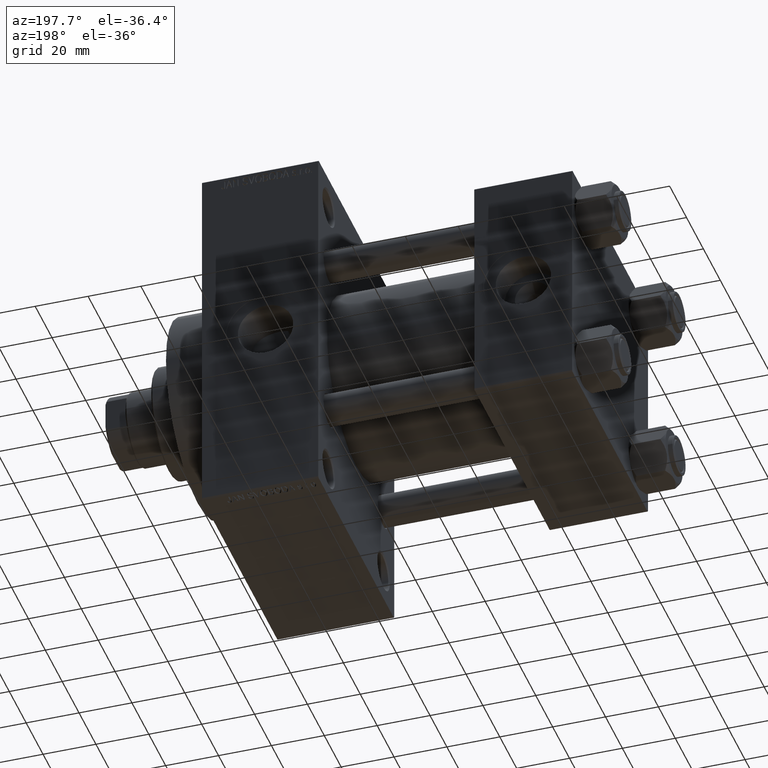
[diagram: clean part render]
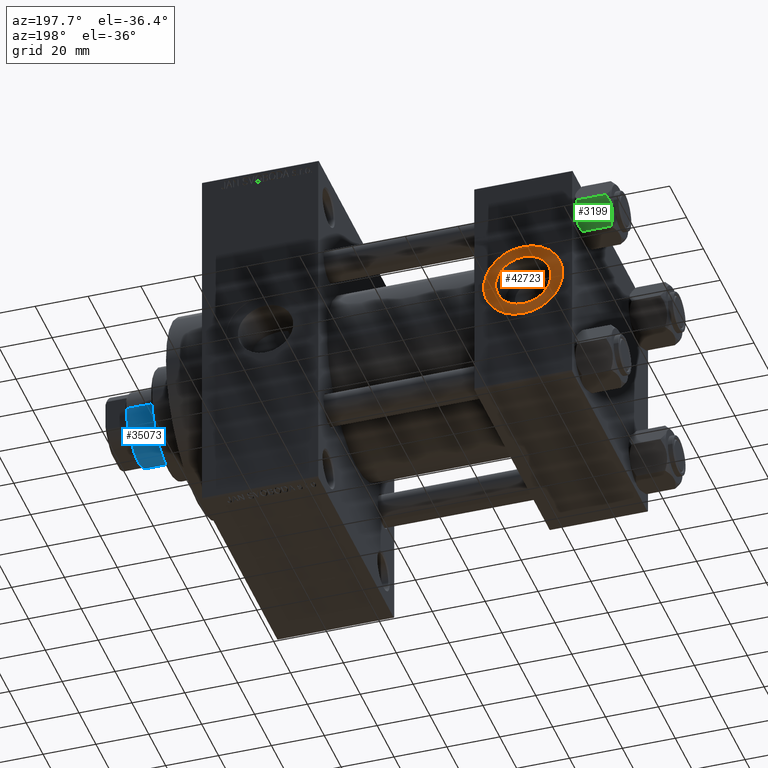
[diagram: same view with three faces highlighted in distinct colors, each labeled with its STEP entity id]
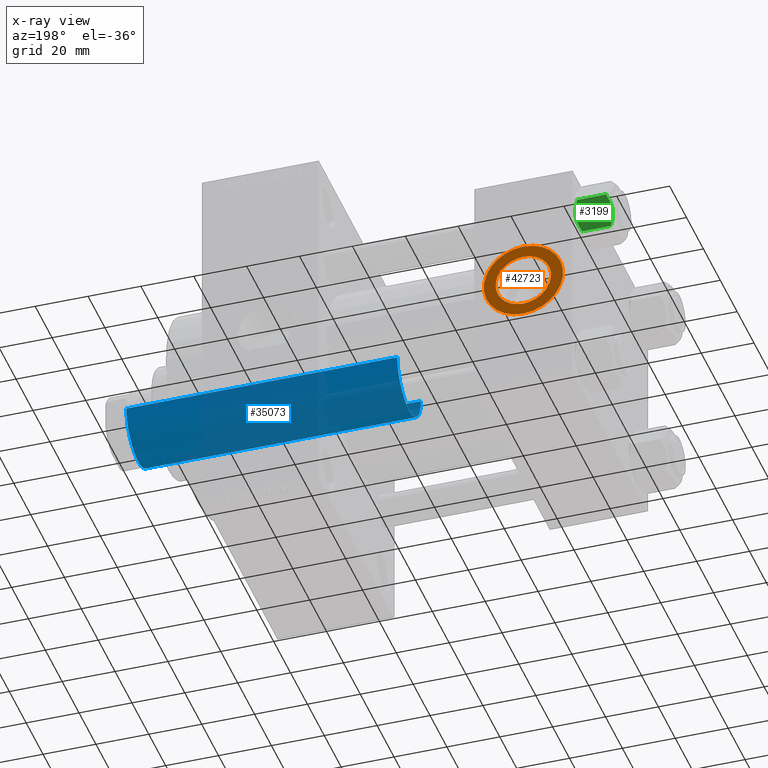
[diagram: x-ray of the same camera — body ghosted, the three highlighted faces saturated]
A machine part, auxiliary view with three faces highlighted in distinct colors.
The next image is the same camera in x-ray (body ghosted, the three faces saturated) — at least one of them is partly hidden behind the body in this view.
Their STEP definitions:

[orange] entity #42723 — the highlighted planar face has unit normal (0, 1, 0).
#172 = DIRECTION ( 'NONE',  ( 0.000000000000000000, -0.000000000000000000, 1.000000000000000000 ) ) ;
#447 = AXIS2_PLACEMENT_3D ( 'NONE', #34890, #2174, #45875 ) ;
#574 = ORIENTED_EDGE ( 'NONE', *, *, #23894, .T. ) ;
#1934 = CARTESIAN_POINT ( 'NONE',  ( 18.50000000000000000, 44.79999999999998295, 15.00000000000000178 ) ) ;
#2174 = DIRECTION ( 'NONE',  ( 0.000000000000000000, 1.000000000000000000, 0.000000000000000000 ) ) ;
#2668 = CARTESIAN_POINT ( 'NONE',  ( 18.50000000000000000, 44.79999999999998295, 0.000000000000000000 ) ) ;
#4369 = EDGE_LOOP ( 'NONE', ( #574, #45633 ) ) ;
#4431 = EDGE_LOOP ( 'NONE', ( #26385, #34835 ) ) ;
#5524 = DIRECTION ( 'NONE',  ( 0.000000000000000000, 0.000000000000000000, 1.000000000000000000 ) ) ;
#6740 = CIRCLE ( 'NONE', #33423, 10.48000000000000043 ) ;
#9186 = EDGE_CURVE ( 'NONE', #44433, #11266, #46582, .T. ) ;
#9995 = AXIS2_PLACEMENT_3D ( 'NONE', #2668, #27725, #34906 ) ;
#10227 = FACE_OUTER_BOUND ( 'NONE', #4369, .T. ) ;
#10907 = CARTESIAN_POINT ( 'NONE',  ( 18.50000000000000000, 44.79999999999998295, 0.000000000000000000 ) ) ;
#11266 = VERTEX_POINT ( 'NONE', #1934 ) ;
#14262 = DIRECTION ( 'NONE',  ( 0.000000000000000000, 1.000000000000000000, 0.000000000000000000 ) ) ;
#17383 = CARTESIAN_POINT ( 'NONE',  ( 18.50000000000000000, 44.79999999999998295, 10.48000000000000043 ) ) ;
#17840 = DIRECTION ( 'NONE',  ( 0.000000000000000000, 1.000000000000000000, 0.000000000000000000 ) ) ;
#18064 = FACE_BOUND ( 'NONE', #4431, .T. ) ;
#18076 = CARTESIAN_POINT ( 'NONE',  ( 18.50000000000000000, 44.79999999999998295, 0.000000000000000000 ) ) ;
#18243 = CARTESIAN_POINT ( 'NONE',  ( 18.50000000000000000, 44.79999999999998295, -10.48000000000000043 ) ) ;
#20580 = EDGE_CURVE ( 'NONE', #43862, #26554, #42278, .T. ) ;
#23132 = AXIS2_PLACEMENT_3D ( 'NONE', #10907, #14262, #172 ) ;
#23894 = EDGE_CURVE ( 'NONE', #11266, #44433, #27871, .T. ) ;
#26385 = ORIENTED_EDGE ( 'NONE', *, *, #26506, .F. ) ;
#26506 = EDGE_CURVE ( 'NONE', #26554, #43862, #6740, .T. ) ;
#26554 = VERTEX_POINT ( 'NONE', #17383 ) ;
#27725 = DIRECTION ( 'NONE',  ( 0.000000000000000000, 1.000000000000000000, 0.000000000000000000 ) ) ;
#27871 = CIRCLE ( 'NONE', #447, 15.00000000000000178 ) ;
#27950 = CARTESIAN_POINT ( 'NONE',  ( 18.50000000000000355, 44.79999999999998295, -15.00000000000000178 ) ) ;
#28125 = DIRECTION ( 'NONE',  ( 0.000000000000000000, 0.000000000000000000, 1.000000000000000000 ) ) ;
#30612 = CARTESIAN_POINT ( 'NONE',  ( 18.50000000000000000, 44.79999999999998295, 0.000000000000000000 ) ) ;
#32879 = PLANE ( 'NONE',  #23132 ) ;
#33423 = AXIS2_PLACEMENT_3D ( 'NONE', #18076, #17840, #28125 ) ;
#34835 = ORIENTED_EDGE ( 'NONE', *, *, #20580, .F. ) ;
#34890 = CARTESIAN_POINT ( 'NONE',  ( 18.50000000000000000, 44.79999999999998295, 0.000000000000000000 ) ) ;
#34906 = DIRECTION ( 'NONE',  ( 0.000000000000000000, 0.000000000000000000, 1.000000000000000000 ) ) ;
#38245 = DIRECTION ( 'NONE',  ( 0.000000000000000000, 1.000000000000000000, 0.000000000000000000 ) ) ;
#40721 = AXIS2_PLACEMENT_3D ( 'NONE', #30612, #38245, #5524 ) ;
#42278 = CIRCLE ( 'NONE', #40721, 10.48000000000000043 ) ;
#42723 = ADVANCED_FACE ( 'NONE', ( #18064, #10227 ), #32879, .T. ) ;
#43862 = VERTEX_POINT ( 'NONE', #18243 ) ;
#44433 = VERTEX_POINT ( 'NONE', #27950 ) ;
#45633 = ORIENTED_EDGE ( 'NONE', *, *, #9186, .T. ) ;
#45875 = DIRECTION ( 'NONE',  ( 0.000000000000000000, 0.000000000000000000, 1.000000000000000000 ) ) ;
#46582 = CIRCLE ( 'NONE', #9995, 15.00000000000000178 ) ;

[blue] entity #35073 — the highlighted cylindrical surface (partial cylindrical patch) has radius 14 mm, axis along (-1, 0, 0).
#2363 = EDGE_CURVE ( 'NONE', #28854, #4145, #46529, .T. ) ;
#3615 = DIRECTION ( 'NONE',  ( -0.000000000000000000, -0.000000000000000000, -1.000000000000000000 ) ) ;
#4082 = DIRECTION ( 'NONE',  ( -0.000000000000000000, -0.000000000000000000, -1.000000000000000000 ) ) ;
#4145 = VERTEX_POINT ( 'NONE', #24747 ) ;
#7141 = ORIENTED_EDGE ( 'NONE', *, *, #12049, .T. ) ;
#7550 = EDGE_LOOP ( 'NONE', ( #41310, #7141, #33747, #10991 ) ) ;
#7823 = CIRCLE ( 'NONE', #16220, 14.00000000000000178 ) ;
#9285 = AXIS2_PLACEMENT_3D ( 'NONE', #43486, #4082, #18640 ) ;
#9465 = VERTEX_POINT ( 'NONE', #31263 ) ;
#10991 = ORIENTED_EDGE ( 'NONE', *, *, #2363, .F. ) ;
#12049 = EDGE_CURVE ( 'NONE', #9465, #19801, #30113, .T. ) ;
#13316 = CARTESIAN_POINT ( 'NONE',  ( 0.000000000000000000, 0.000000000000000000, 39.00000000000000000 ) ) ;
#13530 = EDGE_CURVE ( 'NONE', #28854, #9465, #7823, .T. ) ;
#13810 = DIRECTION ( 'NONE',  ( -0.000000000000000000, -0.000000000000000000, -1.000000000000000000 ) ) ;
#15195 = VECTOR ( 'NONE', #13810, 1000.000000000000000 ) ;
#16220 = AXIS2_PLACEMENT_3D ( 'NONE', #24495, #24026, #38607 ) ;
#18640 = DIRECTION ( 'NONE',  ( -1.000000000000000000, 0.000000000000000000, 0.000000000000000000 ) ) ;
#19801 = VERTEX_POINT ( 'NONE', #30006 ) ;
#21492 = VECTOR ( 'NONE', #3615, 1000.000000000000000 ) ;
#21742 = CYLINDRICAL_SURFACE ( 'NONE', #9285, 14.00000000000000178 ) ;
#22207 = FACE_OUTER_BOUND ( 'NONE', #7550, .T. ) ;
#24026 = DIRECTION ( 'NONE',  ( 0.000000000000000000, 0.000000000000000000, -1.000000000000000000 ) ) ;
#24495 = CARTESIAN_POINT ( 'NONE',  ( 0.000000000000000000, 0.000000000000000000, 141.5000000000000000 ) ) ;
#24747 = CARTESIAN_POINT ( 'NONE',  ( -14.00000000000000178, 0.000000000000000000, 39.00000000000000000 ) ) ;
#28854 = VERTEX_POINT ( 'NONE', #37492 ) ;
#30006 = CARTESIAN_POINT ( 'NONE',  ( 14.00000000000000178, 1.714505518806294835E-15, 39.00000000000000000 ) ) ;
#30113 = LINE ( 'NONE', #32991, #21492 ) ;
#31263 = CARTESIAN_POINT ( 'NONE',  ( 14.00000000000000178, 1.714505518806294835E-15, 141.5000000000000000 ) ) ;
#31963 = CARTESIAN_POINT ( 'NONE',  ( -14.00000000000000178, 0.000000000000000000, 142.0000000000000000 ) ) ;
#32940 = AXIS2_PLACEMENT_3D ( 'NONE', #13316, #45785, #35041 ) ;
#32991 = CARTESIAN_POINT ( 'NONE',  ( 14.00000000000000178, 1.714505518806294835E-15, 142.0000000000000000 ) ) ;
#33747 = ORIENTED_EDGE ( 'NONE', *, *, #34624, .T. ) ;
#34624 = EDGE_CURVE ( 'NONE', #19801, #4145, #41324, .T. ) ;
#35041 = DIRECTION ( 'NONE',  ( 1.000000000000000000, 0.000000000000000000, 0.000000000000000000 ) ) ;
#35073 = ADVANCED_FACE ( 'NONE', ( #22207 ), #21742, .T. ) ;
#37492 = CARTESIAN_POINT ( 'NONE',  ( -14.00000000000000178, 0.000000000000000000, 141.5000000000000000 ) ) ;
#38607 = DIRECTION ( 'NONE',  ( 1.000000000000000000, 0.000000000000000000, 0.000000000000000000 ) ) ;
#41310 = ORIENTED_EDGE ( 'NONE', *, *, #13530, .T. ) ;
#41324 = CIRCLE ( 'NONE', #32940, 14.00000000000000178 ) ;
#43486 = CARTESIAN_POINT ( 'NONE',  ( 0.000000000000000000, 0.000000000000000000, 142.0000000000000000 ) ) ;
#45785 = DIRECTION ( 'NONE',  ( 0.000000000000000000, 0.000000000000000000, 1.000000000000000000 ) ) ;
#46529 = LINE ( 'NONE', #31963, #15195 ) ;

[green] entity #3199 — the highlighted planar face has unit normal (-0, -0.866, 0.5).
#564 = EDGE_CURVE ( 'NONE', #30528, #3450, #31713, .T. ) ;
#1954 = CARTESIAN_POINT ( 'NONE',  ( 6.733375043383499126, 8.463882702393844326, -0.7114554706434494946 ) ) ;
#3199 = ADVANCED_FACE ( 'NONE', ( #22766 ), #4644, .F. ) ;
#3225 = CARTESIAN_POINT ( 'NONE',  ( 9.227666995912102266, 4.143642311704121894, -0.03994118060690670519 ) ) ;
#3450 = VERTEX_POINT ( 'NONE', #29909 ) ;
#3918 = CARTESIAN_POINT ( 'NONE',  ( 10.69859855102501278, 1.595914123792262718, -0.7141438259524649501 ) ) ;
#4644 = PLANE ( 'NONE',  #36615 ) ;
#4971 = CARTESIAN_POINT ( 'NONE',  ( 9.220295946303432189, 4.156409344131451356, -14.00000000000000178 ) ) ;
#6196 = ORIENTED_EDGE ( 'NONE', *, *, #16018, .F. ) ;
#6808 = CARTESIAN_POINT ( 'NONE',  ( 11.16445427487472131, 0.7890283410877956261, -1.101239082899531985 ) ) ;
#6935 = EDGE_CURVE ( 'NONE', #3450, #34267, #15034, .T. ) ;
#6965 = CARTESIAN_POINT ( 'NONE',  ( 6.265545725125286403, 9.274186850887383926, -12.89876091710046957 ) ) ;
#7957 = CARTESIAN_POINT ( 'NONE',  ( 11.62000000000000099, -1.689012838886770227E-15, -12.44321519197518633 ) ) ;
#7987 = DIRECTION ( 'NONE',  ( -0.000000000000000000, -0.000000000000000000, 1.000000000000000000 ) ) ;
#8833 = ORIENTED_EDGE ( 'NONE', *, *, #6935, .F. ) ;
#9433 = CARTESIAN_POINT ( 'NONE',  ( 5.810000000000000497, 10.06321519197518022, -12.44321519197518455 ) ) ;
#10543 = CARTESIAN_POINT ( 'NONE',  ( 7.455303369716807182, 7.213466161761384221, -13.69973261901325934 ) ) ;
#10855 = CARTESIAN_POINT ( 'NONE',  ( 8.715000000000005187, 5.031607595987590109, 0.000000000000000000 ) ) ;
#11016 = CARTESIAN_POINT ( 'NONE',  ( 6.731401448974991375, 8.467301068182917945, -13.28585617404753627 ) ) ;
#11247 = CARTESIAN_POINT ( 'NONE',  ( 8.460569896449618099, 5.472293462311861312, -14.00000000000000000 ) ) ;
#11522 = B_SPLINE_CURVE_WITH_KNOTS ( 'NONE', 3,
 ( #44928, #37521, #34900, #1954, #45409, #38483 ),
 .UNSPECIFIED., .F., .F.,
 ( 4, 2, 4 ),
 ( 0.006022845781655588107, 0.009013049135303636758, 0.01200325248895168367 ),
 .UNSPECIFIED. ) ;
#12374 = EDGE_CURVE ( 'NONE', #19480, #30528, #12953, .T. ) ;
#12953 = B_SPLINE_CURVE_WITH_KNOTS ( 'NONE', 3,
 ( #37687, #4971, #37923, #19521, #41978, #15946 ),
 .UNSPECIFIED., .F., .F.,
 ( 4, 2, 4 ),
 ( 0.006022845781655592444, 0.009013049135303636758, 0.01200325248895168194 ),
 .UNSPECIFIED. ) ;
#14209 = CARTESIAN_POINT ( 'NONE',  ( 11.62000000000000099, -1.924525737834042474E-15, -1.556784808024813893 ) ) ;
#15034 = B_SPLINE_CURVE_WITH_KNOTS ( 'NONE', 3,
 ( #14209, #6808, #3918, #40456, #18470, #3225, #17774, #10855 ),
 .UNSPECIFIED., .F., .F.,
 ( 4, 2, 2, 4 ),
 ( 2.544312114903581015E-07, 0.003011550106433540791, 0.004517197944044564449, 0.006022845781655588107 ),
 .UNSPECIFIED. ) ;
#15625 = CARTESIAN_POINT ( 'NONE',  ( 5.810000000000000497, 10.06321519197518022, -14.00000000000000000 ) ) ;
#15946 = CARTESIAN_POINT ( 'NONE',  ( 11.62000000000000099, -1.689012838886770227E-15, -12.44321519197518633 ) ) ;
#16018 = EDGE_CURVE ( 'NONE', #22176, #19480, #23435, .T. ) ;
#17774 = CARTESIAN_POINT ( 'NONE',  ( 8.969430103550381617, 4.590921729663312689, 3.523657060577888622E-15 ) ) ;
#18470 = CARTESIAN_POINT ( 'NONE',  ( 9.729165168613654657, 3.275021996682081493, -0.1903979688073405840 ) ) ;
#18824 = ORIENTED_EDGE ( 'NONE', *, *, #37759, .T. ) ;
#19480 = VERTEX_POINT ( 'NONE', #41093 ) ;
#19521 = CARTESIAN_POINT ( 'NONE',  ( 10.69662495661650503, 1.599332489581333672, -13.28854452935655139 ) ) ;
#20085 = CARTESIAN_POINT ( 'NONE',  ( 5.810000000000000497, 10.06321519197518022, -14.00000000000000000 ) ) ;
#20114 = VERTEX_POINT ( 'NONE', #40225 ) ;
#21277 = CARTESIAN_POINT ( 'NONE',  ( 8.715000000000005187, 5.031607595987590109, -14.00000000000000000 ) ) ;
#22176 = VERTEX_POINT ( 'NONE', #9433 ) ;
#22666 = CARTESIAN_POINT ( 'NONE',  ( 8.715000000000005187, 5.031607595987590109, 0.000000000000000000 ) ) ;
#22766 = FACE_OUTER_BOUND ( 'NONE', #38176, .T. ) ;
#23435 = B_SPLINE_CURVE_WITH_KNOTS ( 'NONE', 3,
 ( #46852, #6965, #11016, #10543, #43958, #29627, #11247, #21277 ),
 .UNSPECIFIED., .F., .F.,
 ( 4, 2, 2, 4 ),
 ( 2.544312114902182352E-07, 0.003011550106433542526, 0.004517197944044567919, 0.006022845781655592444 ),
 .UNSPECIFIED. ) ;
#24158 = LINE ( 'NONE', #20085, #25383 ) ;
#24522 = DIRECTION ( 'NONE',  ( -0.000000000000000000, -0.000000000000000000, 1.000000000000000000 ) ) ;
#25383 = VECTOR ( 'NONE', #7987, 1000.000000000000000 ) ;
#26586 = DIRECTION ( 'NONE',  ( -0.8660254037844387076, -0.4999999999999998335, 0.000000000000000000 ) ) ;
#29627 = CARTESIAN_POINT ( 'NONE',  ( 8.202333004087901003, 5.919572880271053883, -13.96005881939309567 ) ) ;
#29727 = DIRECTION ( 'NONE',  ( 0.4999999999999998335, -0.8660254037844387076, 0.000000000000000000 ) ) ;
#29909 = CARTESIAN_POINT ( 'NONE',  ( 11.62000000000000099, -1.924525737834042474E-15, -1.556784808024813893 ) ) ;
#30504 = ORIENTED_EDGE ( 'NONE', *, *, #38749, .F. ) ;
#30528 = VERTEX_POINT ( 'NONE', #7957 ) ;
#31713 = LINE ( 'NONE', #46278, #46451 ) ;
#31795 = ORIENTED_EDGE ( 'NONE', *, *, #564, .F. ) ;
#34267 = VERTEX_POINT ( 'NONE', #22666 ) ;
#34900 = CARTESIAN_POINT ( 'NONE',  ( 7.713000053756307928, 6.767122412062951398, -0.1545239700039825748 ) ) ;
#36615 = AXIS2_PLACEMENT_3D ( 'NONE', #15625, #26586, #29727 ) ;
#37521 = CARTESIAN_POINT ( 'NONE',  ( 8.209704053696576409, 5.906805847843727086, 3.430483436379916373E-15 ) ) ;
#37687 = CARTESIAN_POINT ( 'NONE',  ( 8.715000000000005187, 5.031607595987590109, -14.00000000000000000 ) ) ;
#37759 = EDGE_CURVE ( 'NONE', #22176, #20114, #24158, .T. ) ;
#37923 = CARTESIAN_POINT ( 'NONE',  ( 9.716999946243698005, 3.296092779912226156, -13.84547602999602134 ) ) ;
#38176 = EDGE_LOOP ( 'NONE', ( #6196, #18824, #30504, #8833, #31795, #47223 ) ) ;
#38483 = CARTESIAN_POINT ( 'NONE',  ( 5.810000000000000497, 10.06321519197518022, -1.556784808024815892 ) ) ;
#38749 = EDGE_CURVE ( 'NONE', #34267, #20114, #11522, .T. ) ;
#40225 = CARTESIAN_POINT ( 'NONE',  ( 5.810000000000000497, 10.06321519197518022, -1.556784808024815892 ) ) ;
#40456 = CARTESIAN_POINT ( 'NONE',  ( 9.974696630283190757, 2.849749030213792000, -0.3002673809867367205 ) ) ;
#41093 = CARTESIAN_POINT ( 'NONE',  ( 8.715000000000005187, 5.031607595987590109, -14.00000000000000000 ) ) ;
#41978 = CARTESIAN_POINT ( 'NONE',  ( 11.16498164529022574, 0.7881149087337292469, -12.89823354668504862 ) ) ;
#43958 = CARTESIAN_POINT ( 'NONE',  ( 7.700834831386345058, 6.788193195293094284, -13.80960203119265906 ) ) ;
#44928 = CARTESIAN_POINT ( 'NONE',  ( 8.715000000000005187, 5.031607595987590109, 0.000000000000000000 ) ) ;
#45409 = CARTESIAN_POINT ( 'NONE',  ( 6.265018354709773973, 9.275100283241448196, -1.101766453314953154 ) ) ;
#46278 = CARTESIAN_POINT ( 'NONE',  ( 11.62000000000000099, -1.813166800014576593E-15, -14.00000000000000000 ) ) ;
#46451 = VECTOR ( 'NONE', #24522, 1000.000000000000000 ) ;
#46852 = CARTESIAN_POINT ( 'NONE',  ( 5.810000000000000497, 10.06321519197518022, -12.44321519197518455 ) ) ;
#47223 = ORIENTED_EDGE ( 'NONE', *, *, #12374, .F. ) ;